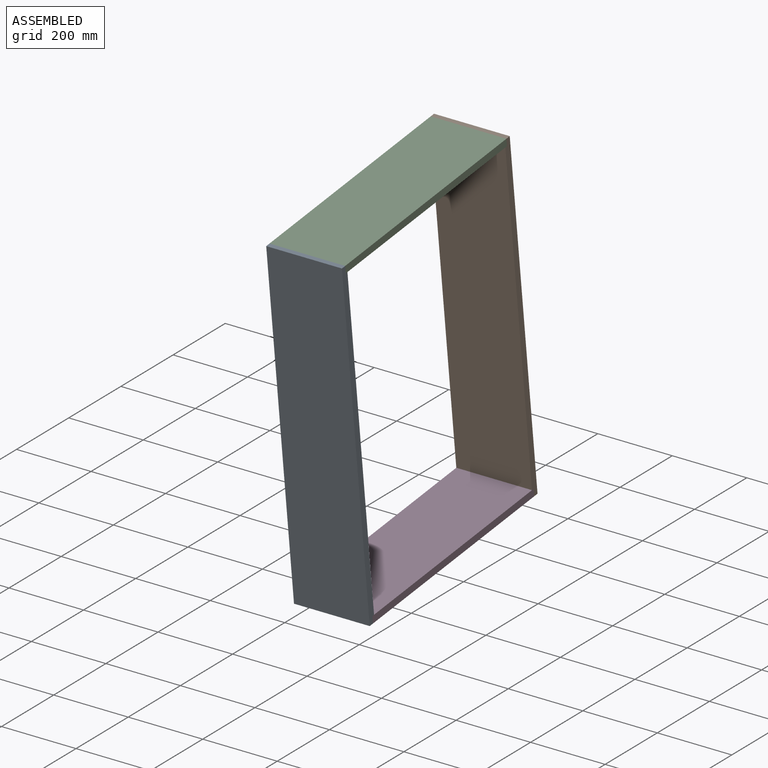
[diagram: assembled view]
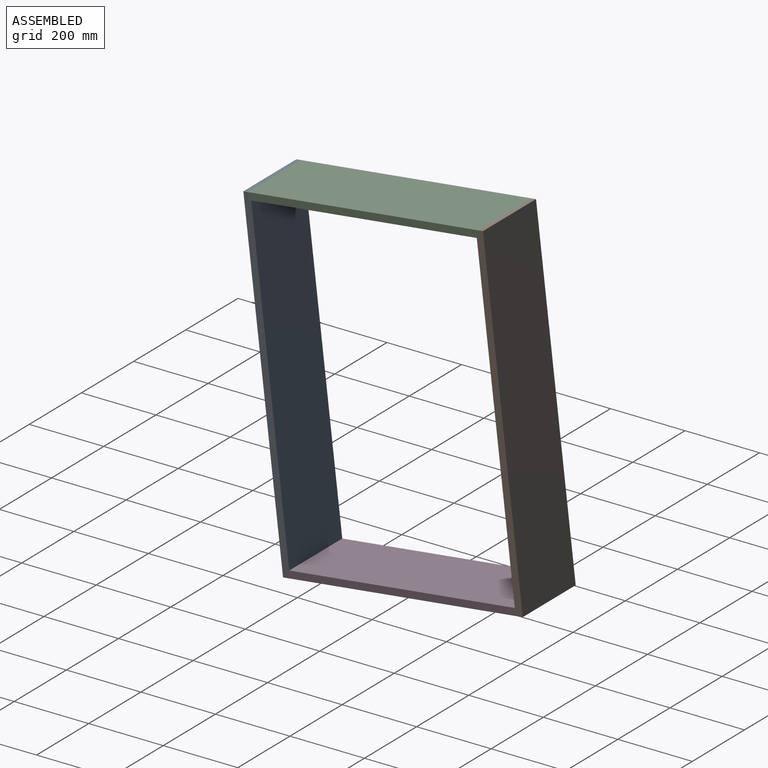
[diagram: assembled view, second angle]
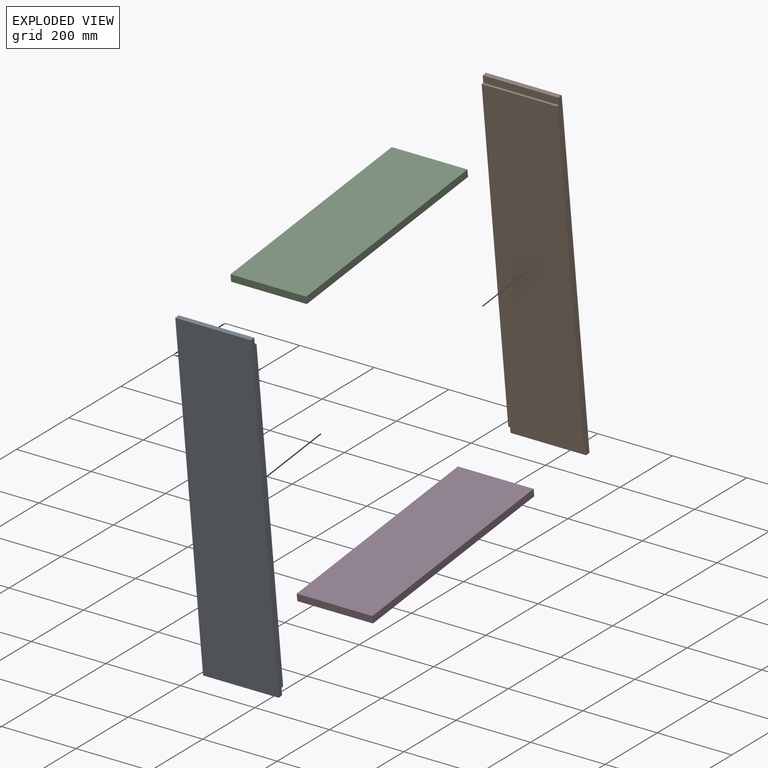
[diagram: exploded view]
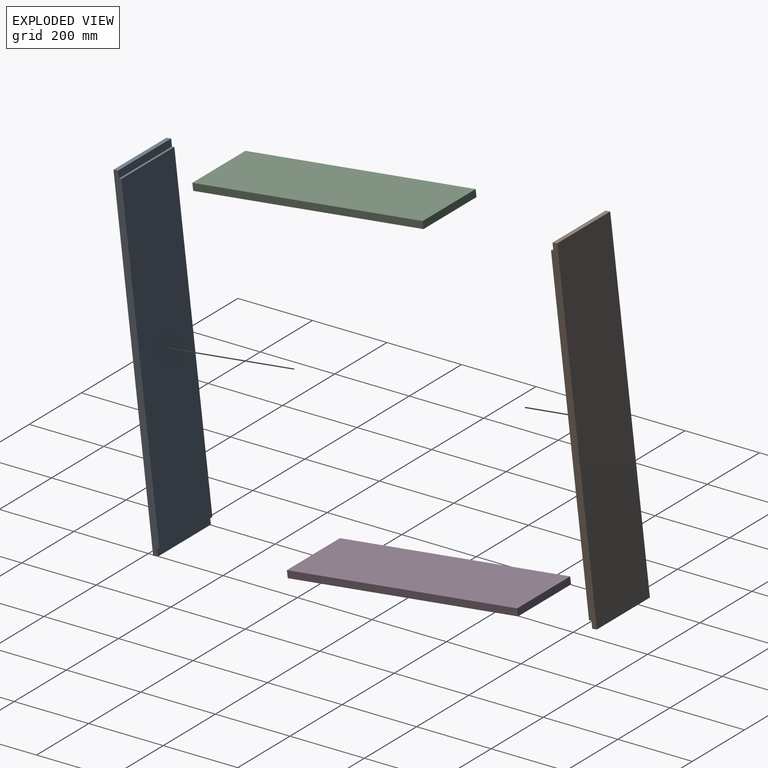
[diagram: exploded view, second angle]
ASSEMBLY  parts=4 mates=3
PART A: 10 faces, bbox 203.2x19.1x914.4 mm
  f0: plane 914.4x19.05mm, normal (-1,0,0), area 17177.4mm2, adj f1,f2,f4,f5,f6,f7,f8,f9
  f1: plane 876.3x203.2mm, normal (0,1,0), area 178064.2mm2, adj f0,f3,f6,f8
  f2: plane 203.2x12.7mm, normal (0,0,-1), area 2580.6mm2, adj f0,f3,f5,f9
  f3: plane 914.4x19.05mm, normal (1,0,0), area 17177.4mm2, adj f1,f2,f4,f5,f6,f7,f8,f9
  f4: plane 203.2x12.7mm, normal (0,0,1), area 2580.6mm2, adj f0,f3,f5,f7
  f5: plane 914.4x203.2mm, normal (0,-1,0), area 185806.1mm2, adj f0,f2,f3,f4
  f6: plane 203.2x6.35mm, normal (0,0,1), area 1290.3mm2, adj f0,f1,f3,f7
  f7: plane 203.2x19.05mm, normal (0,1,0), area 3871mm2, adj f0,f3,f4,f6
  f8: plane 203.2x6.35mm, normal (0,0,-1), area 1290.3mm2, adj f0,f1,f3,f9
  f9: plane 203.2x19.05mm, normal (0,1,0), area 3871mm2, adj f0,f2,f3,f8
PART B: same geometry as A
PART C: 6 faces, bbox 622.3x203.2x19.1 mm
  f0: plane 203.2x19.05mm, normal (-1,0,0), area 3871mm2, adj f1,f3,f4,f5
  f1: plane 622.3x19.05mm, normal (0,-1,0), area 11854.8mm2, adj f0,f2,f4,f5
  f2: plane 203.2x19.05mm, normal (1,0,0), area 3871mm2, adj f1,f3,f4,f5
  f3: plane 622.3x19.05mm, normal (0,1,0), area 11854.8mm2, adj f0,f2,f4,f5
  f4: plane 622.3x203.2mm, normal (0,0,1), area 126451.4mm2, adj f0,f1,f2,f3
  f5: plane 622.3x203.2mm, normal (0,0,-1), area 126451.4mm2, adj f0,f1,f2,f3
PART D: same geometry as C
PLACE A rot(axis=(1,0,0),6.7deg) t=(33.82,206.3,-111.57)mm
PLACE B rot(axis=(0,0.06,-1),180deg) t=(237.02,811.75,-40.54)mm
PLACE C rot(axis=(0.06,0.06,-1),90.2deg) t=(33.82,713.73,849.45)mm
PLACE D rot(axis=(0.06,0.06,-1),90.2deg) t=(33.82,818.06,-39.8)mm
MATE fastened B.f7 <-> C.f0  axis (0,-0.99,-0.12) through (135.42,712.62,858.91)mm
MATE fastened D.f2 <-> A.f9  axis (0,-0.99,-0.12) through (135.42,198.89,-102.85)mm
MATE fastened C.f2 <-> A.f7  axis (0,-0.99,-0.12) through (135.42,94.56,786.4)mm
